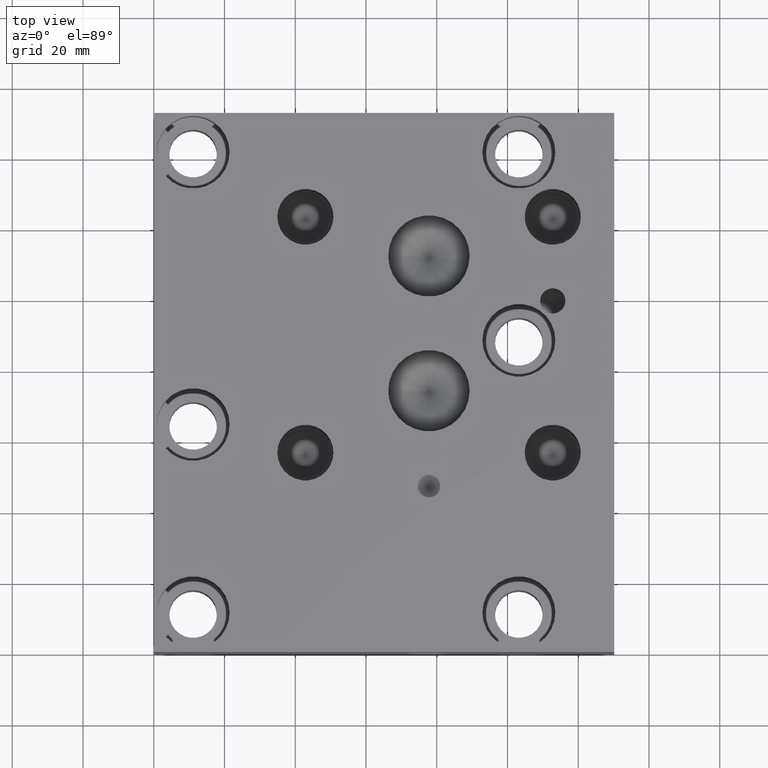
[diagram: clean part render]
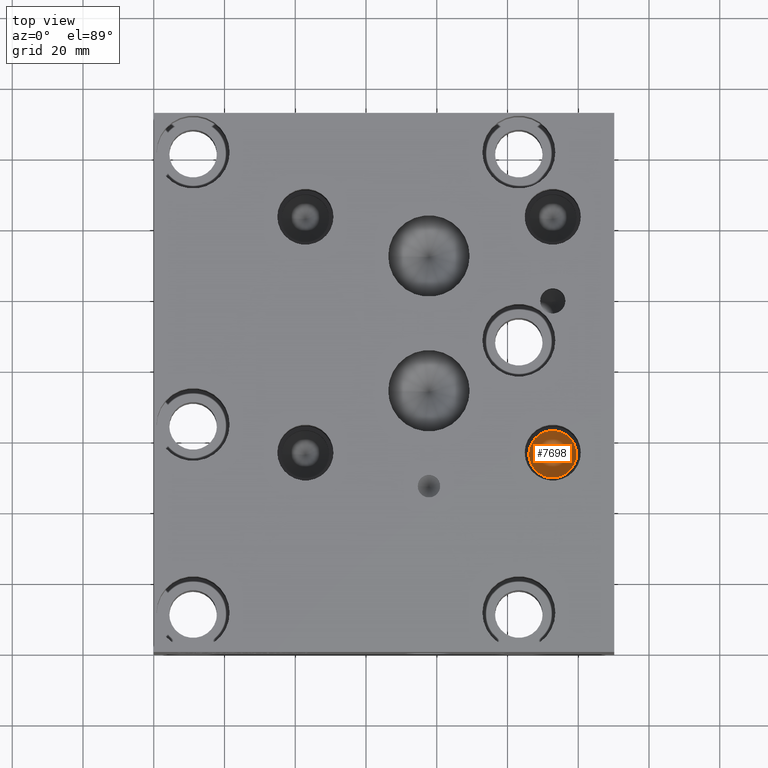
[diagram: same view with one face highlighted and labeled with its STEP entity id]
A machine part, top view. The second image highlights one B-rep face of the part: STEP entity #7698.
In plain terms, the highlighted conical surface has half-angle 60 deg.
Its self-contained STEP definition (entity closure, byte-faithful):
#80=CONICAL_SURFACE('',#8120,3.37185,1.0471975511966);
#165=CIRCLE('',#8121,6.7437);
#911=FACE_OUTER_BOUND('',#1380,.T.);
#1380=EDGE_LOOP('',(#6676,#6677,#6678));
#2163=LINE('',#13066,#2926);
#2926=VECTOR('',#9680,3.37185);
#3620=VERTEX_POINT('',#13063);
#3621=VERTEX_POINT('',#13065);
#4648=EDGE_CURVE('',#3620,#3620,#165,.T.);
#4649=EDGE_CURVE('',#3620,#3621,#2163,.T.);
#6676=ORIENTED_EDGE('',*,*,#4648,.T.);
#6677=ORIENTED_EDGE('',*,*,#4649,.T.);
#6678=ORIENTED_EDGE('',*,*,#4649,.F.);
#7698=ADVANCED_FACE('',(#911),#80,.F.);
#8120=AXIS2_PLACEMENT_3D('',#13062,#9676,#9677);
#8121=AXIS2_PLACEMENT_3D('',#13064,#9678,#9679);
#9676=DIRECTION('center_axis',(0.,0.,1.));
#9677=DIRECTION('ref_axis',(1.,0.,0.));
#9678=DIRECTION('center_axis',(0.,0.,1.));
#9679=DIRECTION('ref_axis',(1.,0.,0.));
#9680=DIRECTION('',(0.866025403784439,1.06057523872491E-16,-0.5));
#13062=CARTESIAN_POINT('Origin',(112.776,56.3626,20.151261494833));
#13063=CARTESIAN_POINT('',(106.0323,56.3626,22.098));
#13064=CARTESIAN_POINT('Origin',(112.776,56.3626,22.098));
#13065=CARTESIAN_POINT('',(112.776,56.3626,18.2045229896659));
#13066=CARTESIAN_POINT('',(109.40415,56.3626,20.151261494833));